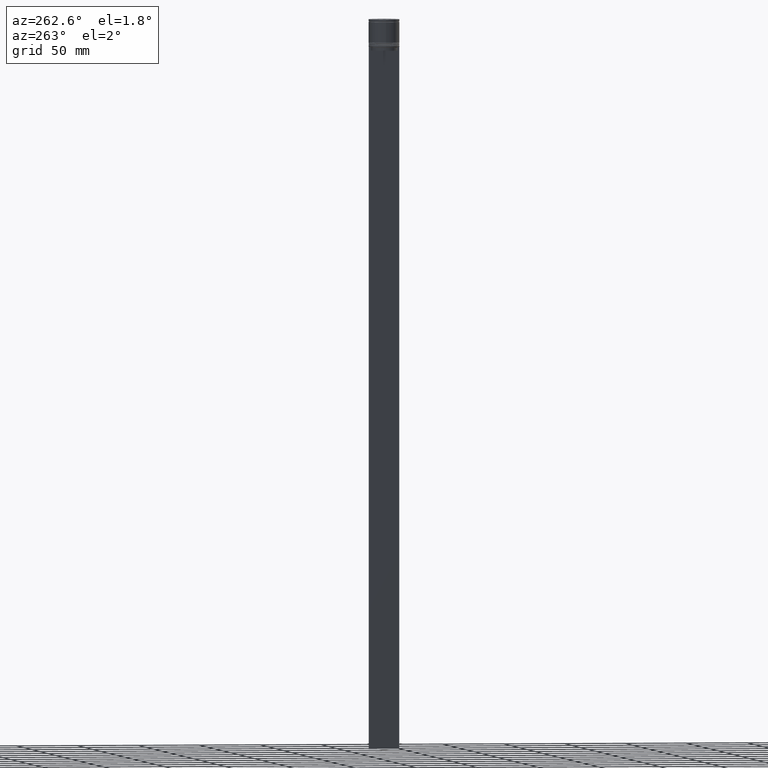
[diagram: clean part render]
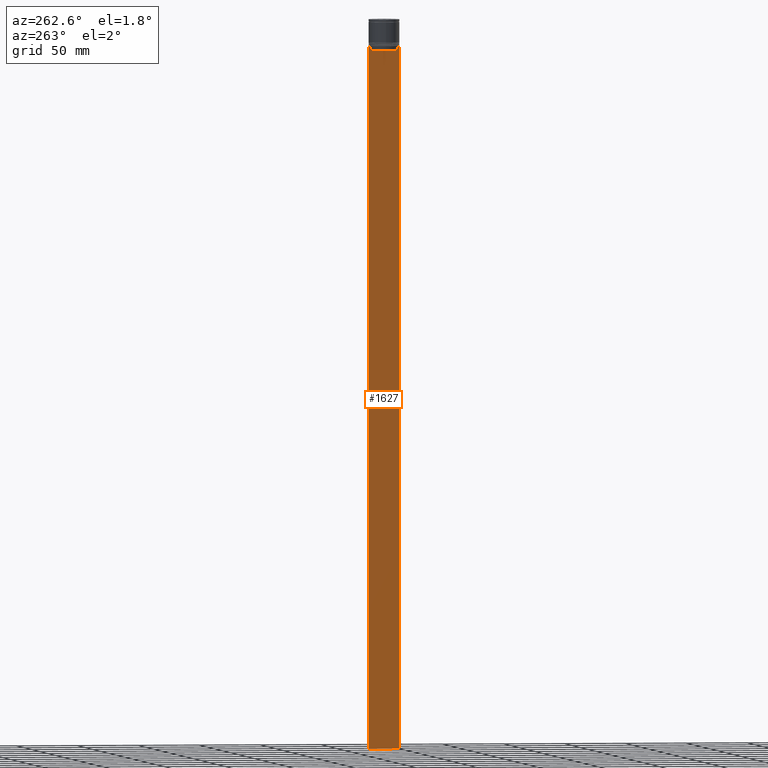
[diagram: same view with one face highlighted and labeled with its STEP entity id]
A machine part, auxiliary view. The second image highlights one B-rep face of the part: STEP entity #1627.
In plain terms, the highlighted planar face has unit normal (-1, 0, 0).
Its self-contained STEP definition (entity closure, byte-faithful):
#22 = VECTOR ( 'NONE', #1255, 1000.000000000000000 ) ;
#37 = DIRECTION ( 'NONE',  ( 0.000000000000000000, -1.000000000000000000, 0.000000000000000000 ) ) ;
#47 = VECTOR ( 'NONE', #723, 1000.000000000000000 ) ;
#61 = LINE ( 'NONE', #375, #47 ) ;
#70 = DIRECTION ( 'NONE',  ( -0.000000000000000000, -0.000000000000000000, 1.000000000000000000 ) ) ;
#79 = CARTESIAN_POINT ( 'NONE',  ( -0.5000000000000000000, -11.38902980942626897, -22.50000000000000000 ) ) ;
#82 = ORIENTED_EDGE ( 'NONE', *, *, #1936, .F. ) ;
#103 = CARTESIAN_POINT ( 'NONE',  ( -0.5000000000000000000, -10.88852607105296855, -25.50000000000000000 ) ) ;
#133 = DIRECTION ( 'NONE',  ( 0.000000000000000000, 0.000000000000000000, -1.000000000000000000 ) ) ;
#144 = CARTESIAN_POINT ( 'NONE',  ( -0.5000000000000000000, 12.50000000000000711, -594.4999999999998863 ) ) ;
#145 = VERTEX_POINT ( 'NONE', #1414 ) ;
#161 = ORIENTED_EDGE ( 'NONE', *, *, #1156, .F. ) ;
#167 = VECTOR ( 'NONE', #37, 1000.000000000000000 ) ;
#184 = ORIENTED_EDGE ( 'NONE', *, *, #1469, .F. ) ;
#209 = VERTEX_POINT ( 'NONE', #951 ) ;
#242 = EDGE_CURVE ( 'NONE', #1139, #1220, #1495, .T. ) ;
#301 = ORIENTED_EDGE ( 'NONE', *, *, #1791, .F. ) ;
#319 = CARTESIAN_POINT ( 'NONE',  ( -0.5000000000000000000, 11.05536450345590715, -22.83333719074559554 ) ) ;
#334 = DIRECTION ( 'NONE',  ( 0.000000000000000000, 0.000000000000000000, -1.000000000000000000 ) ) ;
#336 = VECTOR ( 'NONE', #133, 1000.000000000000000 ) ;
#375 = CARTESIAN_POINT ( 'NONE',  ( -0.5000000000000000000, 10.88852607105297032, 0.000000000000000000 ) ) ;
#379 = EDGE_CURVE ( 'NONE', #1220, #1123, #729, .T. ) ;
#382 = VERTEX_POINT ( 'NONE', #929 ) ;
#418 = CARTESIAN_POINT ( 'NONE',  ( -0.5000000000000000000, -11.22219891450653151, -22.66667035398018726 ) ) ;
#441 = ORIENTED_EDGE ( 'NONE', *, *, #1061, .T. ) ;
#446 = LINE ( 'NONE', #1863, #22 ) ;
#467 = CARTESIAN_POINT ( 'NONE',  ( -0.5000000000000000000, 10.88852607105296855, -25.50000000000000000 ) ) ;
#471 = LINE ( 'NONE', #1803, #167 ) ;
#474 = ORIENTED_EDGE ( 'NONE', *, *, #977, .F. ) ;
#492 = CARTESIAN_POINT ( 'NONE',  ( -0.5000000000000000000, 10.90000000000000924, -25.50000000000000000 ) ) ;
#531 = PLANE ( 'NONE',  #1871 ) ;
#547 = VECTOR ( 'NONE', #1538, 1000.000000000000000 ) ;
#616 = VERTEX_POINT ( 'NONE', #467 ) ;
#634 = CARTESIAN_POINT ( 'NONE',  ( -0.5000000000000000000, -12.49999999999999289, -22.50000000000000000 ) ) ;
#723 = DIRECTION ( 'NONE',  ( 0.000000000000000000, 0.000000000000000000, -1.000000000000000000 ) ) ;
#729 = LINE ( 'NONE', #1407, #1699 ) ;
#792 = ORIENTED_EDGE ( 'NONE', *, *, #967, .F. ) ;
#795 = ORIENTED_EDGE ( 'NONE', *, *, #2087, .F. ) ;
#876 = VECTOR ( 'NONE', #334, 1000.000000000000000 ) ;
#895 = B_SPLINE_CURVE_WITH_KNOTS ( 'NONE', 3,
 ( #1611, #1114, #418, #1249 ),
 .UNSPECIFIED., .F., .F.,
 ( 4, 4 ),
 ( 0.05041323384703231408, 0.05112713601261610619 ),
 .UNSPECIFIED. ) ;
#929 = CARTESIAN_POINT ( 'NONE',  ( -0.5000000000000000000, 12.38991525394746596, -22.50000000000000000 ) ) ;
#945 = LINE ( 'NONE', #1596, #336 ) ;
#951 = CARTESIAN_POINT ( 'NONE',  ( -0.5000000000000000000, 10.88852607105297032, -22.99999999999999645 ) ) ;
#967 = EDGE_CURVE ( 'NONE', #1082, #1139, #895, .T. ) ;
#977 = EDGE_CURVE ( 'NONE', #1123, #2029, #945, .T. ) ;
#981 = CARTESIAN_POINT ( 'NONE',  ( -0.5000000000000000000, -10.88852607105297032, -22.99999999999999645 ) ) ;
#1019 = VERTEX_POINT ( 'NONE', #1951 ) ;
#1027 = CARTESIAN_POINT ( 'NONE',  ( -0.5000000000000000000, -10.88852607105297032, 0.000000000000000000 ) ) ;
#1039 = ORIENTED_EDGE ( 'NONE', *, *, #1153, .F. ) ;
#1050 = ORIENTED_EDGE ( 'NONE', *, *, #242, .F. ) ;
#1061 = EDGE_CURVE ( 'NONE', #145, #1556, #1140, .T. ) ;
#1082 = VERTEX_POINT ( 'NONE', #981 ) ;
#1102 = VECTOR ( 'NONE', #1958, 1000.000000000000000 ) ;
#1114 = CARTESIAN_POINT ( 'NONE',  ( -0.5000000000000000000, -11.05536450423839412, -22.83333718996392747 ) ) ;
#1123 = VERTEX_POINT ( 'NONE', #634 ) ;
#1139 = VERTEX_POINT ( 'NONE', #79 ) ;
#1140 = LINE ( 'NONE', #1159, #876 ) ;
#1153 = EDGE_CURVE ( 'NONE', #209, #616, #61, .T. ) ;
#1156 = EDGE_CURVE ( 'NONE', #1701, #1082, #1521, .T. ) ;
#1159 = CARTESIAN_POINT ( 'NONE',  ( -0.5000000000000000000, 12.50000000000000711, 2.519992006393609874 ) ) ;
#1191 = CARTESIAN_POINT ( 'NONE',  ( -0.5000000000000000000, -12.49999999999999289, -594.4999999999998863 ) ) ;
#1193 = CARTESIAN_POINT ( 'NONE',  ( -0.5000000000000000000, -12.49999999999999289, 2.519992006393609874 ) ) ;
#1213 = CARTESIAN_POINT ( 'NONE',  ( -0.5000000000000000000, -12.49999999999999289, -22.50000000000000000 ) ) ;
#1220 = VERTEX_POINT ( 'NONE', #1355 ) ;
#1249 = CARTESIAN_POINT ( 'NONE',  ( -0.5000000000000000000, -11.38902980942626897, -22.50000000000000000 ) ) ;
#1255 = DIRECTION ( 'NONE',  ( 0.000000000000000000, 1.000000000000000000, 0.000000000000000000 ) ) ;
#1298 = VECTOR ( 'NONE', #1846, 1000.000000000000000 ) ;
#1310 = B_SPLINE_CURVE_WITH_KNOTS ( 'NONE', 3,
 ( #1779, #1956, #319, #1323 ),
 .UNSPECIFIED., .F., .F.,
 ( 4, 4 ),
 ( 0.01935560801904635808, 0.02006307108468587813 ),
 .UNSPECIFIED. ) ;
#1321 = EDGE_LOOP ( 'NONE', ( #82, #1628, #795, #441, #301, #474, #1773, #1050, #792, #161, #184, #1039 ) ) ;
#1323 = CARTESIAN_POINT ( 'NONE',  ( -0.5000000000000000000, 10.88852607105297032, -22.99999999999999645 ) ) ;
#1345 = DIRECTION ( 'NONE',  ( -1.000000000000000000, 0.000000000000000000, 0.000000000000000000 ) ) ;
#1355 = CARTESIAN_POINT ( 'NONE',  ( -0.5000000000000000000, -12.38991525394746596, -22.50000000000000000 ) ) ;
#1385 = DIRECTION ( 'NONE',  ( 0.000000000000000000, -1.000000000000000000, 0.000000000000000000 ) ) ;
#1393 = CARTESIAN_POINT ( 'NONE',  ( -0.5000000000000000000, -12.49999999999999289, -22.50000000000000000 ) ) ;
#1407 = CARTESIAN_POINT ( 'NONE',  ( -0.5000000000000000000, -12.49999999999999289, -22.50000000000000000 ) ) ;
#1414 = CARTESIAN_POINT ( 'NONE',  ( -0.5000000000000000000, 12.50000000000000711, -22.50000000000000000 ) ) ;
#1469 = EDGE_CURVE ( 'NONE', #616, #1701, #1783, .T. ) ;
#1495 = LINE ( 'NONE', #1213, #1298 ) ;
#1518 = FACE_OUTER_BOUND ( 'NONE', #1321, .T. ) ;
#1521 = LINE ( 'NONE', #1027, #1869 ) ;
#1523 = EDGE_CURVE ( 'NONE', #382, #1019, #471, .T. ) ;
#1538 = DIRECTION ( 'NONE',  ( 0.000000000000000000, -1.000000000000000000, 0.000000000000000000 ) ) ;
#1556 = VERTEX_POINT ( 'NONE', #144 ) ;
#1596 = CARTESIAN_POINT ( 'NONE',  ( -0.5000000000000000000, -12.49999999999999289, 2.519992006393609874 ) ) ;
#1611 = CARTESIAN_POINT ( 'NONE',  ( -0.5000000000000000000, -10.88852607105297032, -22.99999999999999645 ) ) ;
#1627 = ADVANCED_FACE ( 'NONE', ( #1518 ), #531, .T. ) ;
#1628 = ORIENTED_EDGE ( 'NONE', *, *, #1523, .F. ) ;
#1699 = VECTOR ( 'NONE', #1385, 1000.000000000000000 ) ;
#1701 = VERTEX_POINT ( 'NONE', #103 ) ;
#1773 = ORIENTED_EDGE ( 'NONE', *, *, #379, .F. ) ;
#1779 = CARTESIAN_POINT ( 'NONE',  ( -0.5000000000000000000, 11.38902980942626897, -22.50000000000000000 ) ) ;
#1783 = LINE ( 'NONE', #492, #1102 ) ;
#1791 = EDGE_CURVE ( 'NONE', #2029, #1556, #446, .T. ) ;
#1803 = CARTESIAN_POINT ( 'NONE',  ( -0.5000000000000000000, -12.49999999999999289, -22.50000000000000000 ) ) ;
#1815 = DIRECTION ( 'NONE',  ( 0.000000000000000000, 0.000000000000000000, 1.000000000000000000 ) ) ;
#1846 = DIRECTION ( 'NONE',  ( 0.000000000000000000, -1.000000000000000000, 0.000000000000000000 ) ) ;
#1863 = CARTESIAN_POINT ( 'NONE',  ( -0.5000000000000000000, -12.49999999999999289, -594.4999999999998863 ) ) ;
#1869 = VECTOR ( 'NONE', #70, 1000.000000000000000 ) ;
#1871 = AXIS2_PLACEMENT_3D ( 'NONE', #1193, #1345, #1815 ) ;
#1875 = LINE ( 'NONE', #1393, #547 ) ;
#1936 = EDGE_CURVE ( 'NONE', #1019, #209, #1310, .T. ) ;
#1951 = CARTESIAN_POINT ( 'NONE',  ( -0.5000000000000000000, 11.38902980942626897, -22.50000000000000000 ) ) ;
#1956 = CARTESIAN_POINT ( 'NONE',  ( -0.5000000000000000000, 11.22219891375843126, -22.66667035472756808 ) ) ;
#1958 = DIRECTION ( 'NONE',  ( 0.000000000000000000, -1.000000000000000000, 0.000000000000000000 ) ) ;
#2029 = VERTEX_POINT ( 'NONE', #1191 ) ;
#2087 = EDGE_CURVE ( 'NONE', #145, #382, #1875, .T. ) ;